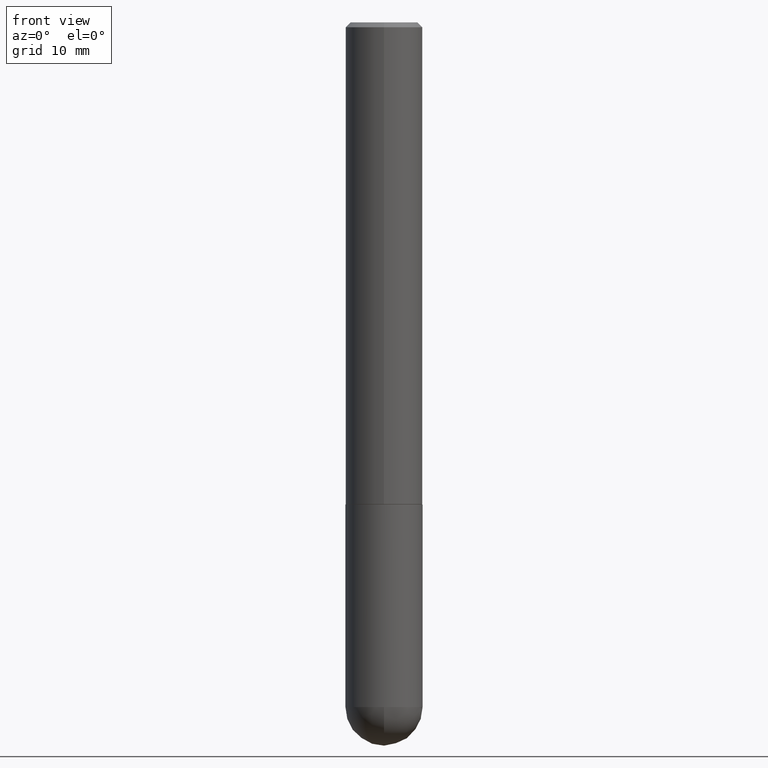
[diagram: clean part render]
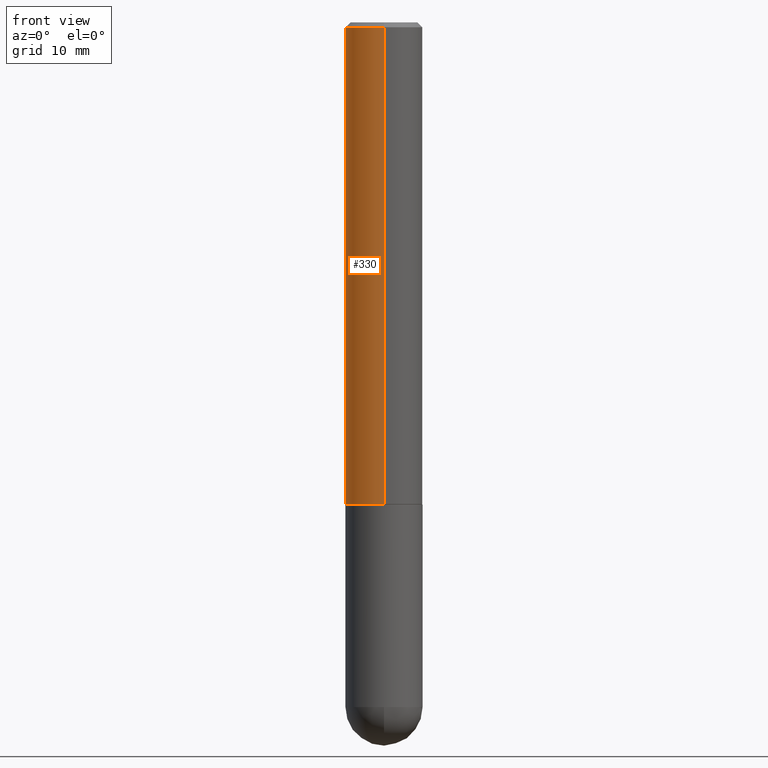
[diagram: same view with one face highlighted and labeled with its STEP entity id]
A machine part, front view. The second image highlights one B-rep face of the part: STEP entity #330.
In plain terms, the highlighted cylindrical surface (partial cylindrical patch) has radius 4.0005 mm, axis along (-0, 0, 1).
Its self-contained STEP definition (entity closure, byte-faithful):
#17 = CARTESIAN_POINT ( 'NONE',  ( 0.000000000000000000, 0.000000000000000000, 0.000000000000000000 ) ) ;
#19 = CARTESIAN_POINT ( 'NONE',  ( 4.825502781678292621E-29, -6.849379294212400691E-15, -1.967499999999999805 ) ) ;
#33 = EDGE_CURVE ( 'NONE', #229, #309, #162, .T. ) ;
#52 = VECTOR ( 'NONE', #305, 39.37007874015748143 ) ;
#55 = LINE ( 'NONE', #222, #69 ) ;
#69 = VECTOR ( 'NONE', #116, 39.37007874015748143 ) ;
#86 = CYLINDRICAL_SURFACE ( 'NONE', #291, 0.1575000000000000844 ) ;
#97 = ORIENTED_EDGE ( 'NONE', *, *, #215, .F. ) ;
#110 = ORIENTED_EDGE ( 'NONE', *, *, #200, .T. ) ;
#116 = DIRECTION ( 'NONE',  ( -2.452606242276134078E-29, 3.481260124123204048E-15, 1.000000000000000000 ) ) ;
#135 = EDGE_LOOP ( 'NONE', ( #97, #110, #323, #191 ) ) ;
#141 = DIRECTION ( 'NONE',  ( -6.982962677686265922E-15, -1.000000000000000000, 3.481260124123204048E-15 ) ) ;
#143 = DIRECTION ( 'NONE',  ( -6.982962677686265922E-15, -1.000000000000000000, 3.469013325287954477E-15 ) ) ;
#162 = CIRCLE ( 'NONE', #371, 0.1574999999999999456 ) ;
#170 = VERTEX_POINT ( 'NONE', #201 ) ;
#191 = ORIENTED_EDGE ( 'NONE', *, *, #33, .F. ) ;
#198 = CARTESIAN_POINT ( 'NONE',  ( -1.099816621735539951E-15, -0.1575000000000070510, -1.967499999999999138 ) ) ;
#200 = EDGE_CURVE ( 'NONE', #170, #354, #399, .T. ) ;
#201 = CARTESIAN_POINT ( 'NONE',  ( 1.119104808822183241E-15, 0.1574999999999933398, -1.967500000000000249 ) ) ;
#211 = CARTESIAN_POINT ( 'NONE',  ( 4.905212484552274391E-31, -6.962520248246417464E-17, -0.02000000000000003164 ) ) ;
#212 = LINE ( 'NONE', #276, #52 ) ;
#215 = EDGE_CURVE ( 'NONE', #170, #229, #55, .T. ) ;
#222 = CARTESIAN_POINT ( 'NONE',  ( 1.119104808822158195E-15, 0.1575000000000000844, -5.482984695494049531E-16 ) ) ;
#229 = VERTEX_POINT ( 'NONE', #348 ) ;
#246 = CARTESIAN_POINT ( 'NONE',  ( -1.080528434649015385E-15, -0.1575000000000000289, -0.01999999999999948347 ) ) ;
#274 = DIRECTION ( 'NONE',  ( -6.982962677686265922E-15, -1.000000000000000000, 3.469013325287948955E-15 ) ) ;
#276 = CARTESIAN_POINT ( 'NONE',  ( -1.099816621735587480E-15, -0.1575000000000000844, 5.482984695494049531E-16 ) ) ;
#286 = EDGE_CURVE ( 'NONE', #354, #309, #212, .T. ) ;
#291 = AXIS2_PLACEMENT_3D ( 'NONE', #17, #345, #141 ) ;
#304 = DIRECTION ( 'NONE',  ( -2.452606242276133797E-29, 3.481260124123203654E-15, 1.000000000000000000 ) ) ;
#305 = DIRECTION ( 'NONE',  ( -2.452606242276134078E-29, 3.481260124123204048E-15, 1.000000000000000000 ) ) ;
#309 = VERTEX_POINT ( 'NONE', #246 ) ;
#323 = ORIENTED_EDGE ( 'NONE', *, *, #286, .T. ) ;
#328 = AXIS2_PLACEMENT_3D ( 'NONE', #19, #337, #274 ) ;
#330 = ADVANCED_FACE ( 'NONE', ( #378 ), #86, .T. ) ;
#337 = DIRECTION ( 'NONE',  ( -2.452606242276133797E-29, 3.481260124123203654E-15, 1.000000000000000000 ) ) ;
#345 = DIRECTION ( 'NONE',  ( -2.452606242276133797E-29, 3.481260124123203654E-15, 1.000000000000000000 ) ) ;
#348 = CARTESIAN_POINT ( 'NONE',  ( 1.099816621735586889E-15, 0.1574999999999998901, -0.02000000000000057634 ) ) ;
#354 = VERTEX_POINT ( 'NONE', #198 ) ;
#371 = AXIS2_PLACEMENT_3D ( 'NONE', #211, #304, #143 ) ;
#378 = FACE_OUTER_BOUND ( 'NONE', #135, .T. ) ;
#399 = CIRCLE ( 'NONE', #328, 0.1575000000000001954 ) ;